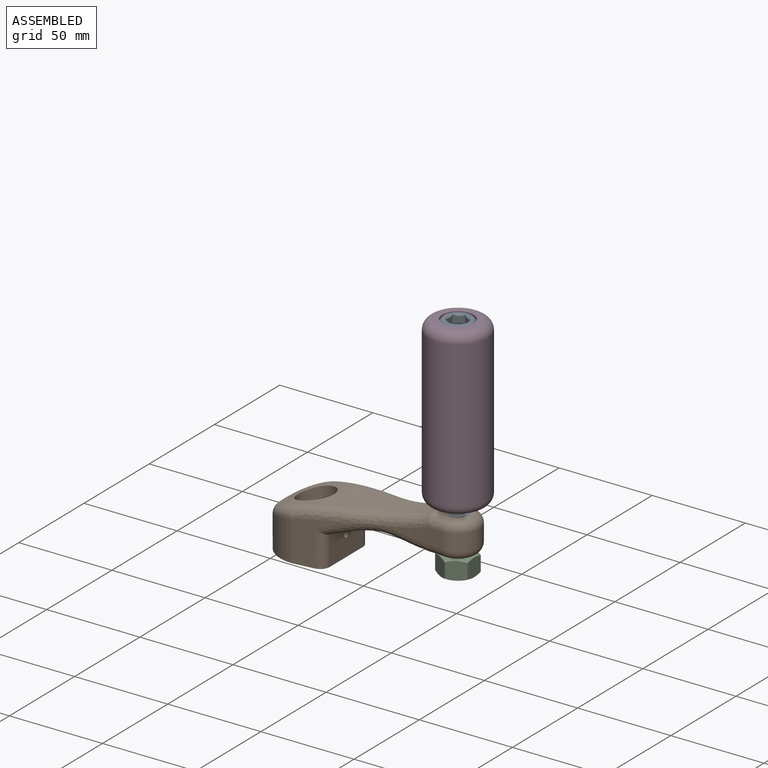
[diagram: assembled view]
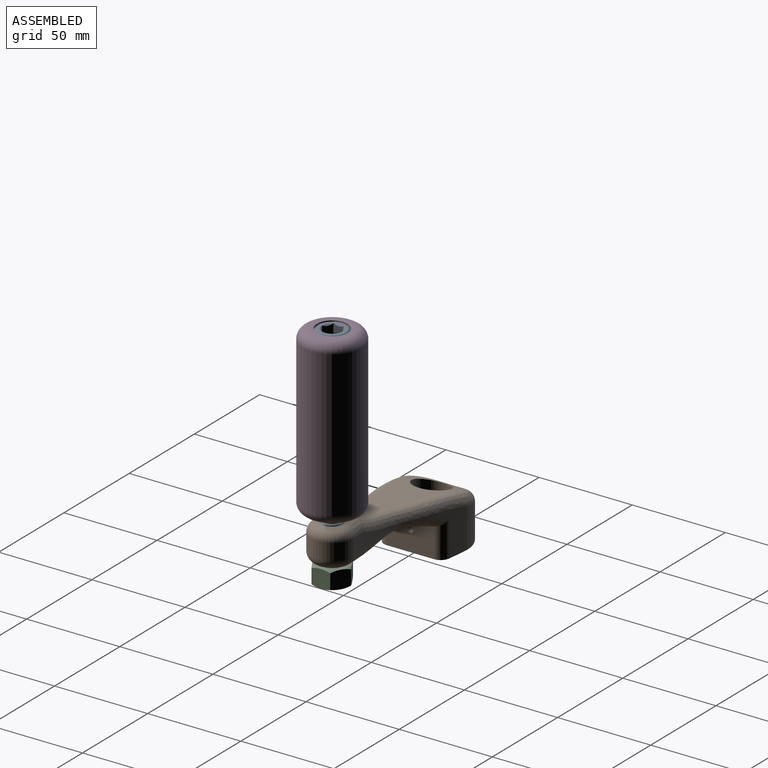
[diagram: assembled view, second angle]
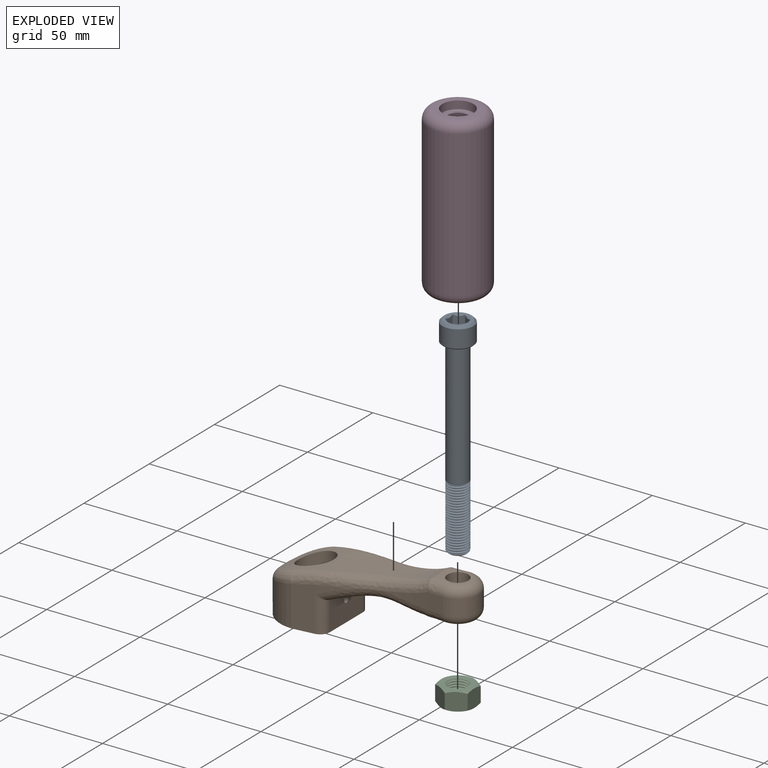
[diagram: exploded view]
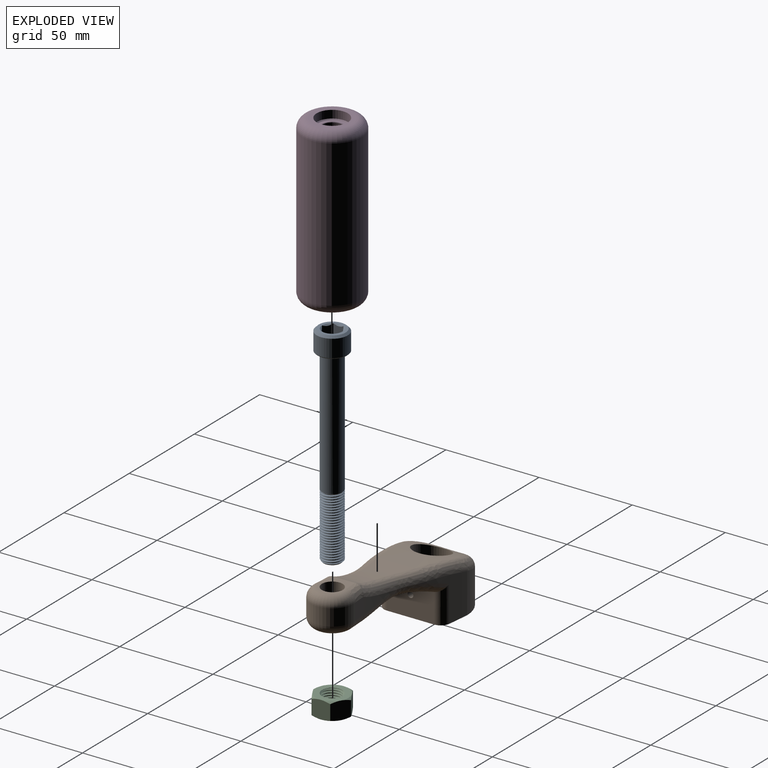
[diagram: exploded view, second angle]
ASSEMBLY  parts=4 mates=3
PART A: 52 faces, bbox 18.8x18.8x115.9 mm
  f0: cone r=8.33mm half-angle=45deg, axis (0,0,-1), area 39.8mm2, adj f1,f36
  f1: plane 15.56x15.56mm, normal (0,0,1), area 93.1mm2, adj f0,f2
  f2: cylinder r=5.56mm len=67.63mm, axis (0,0,1), area 2331.5mm2, adj f1,f3,f33,f34,f35
  f3: cylinder r=5.56mm len=11.11mm, axis (0,0,1), area 5.5mm2, adj f2,f4,f33,f35
  f4: cylinder r=5.56mm len=11.11mm, axis (0,0,1), area 5.5mm2, adj f3,f5,f33,f35
  f5: cylinder r=5.56mm len=11.11mm, axis (0,0,1), area 5.5mm2, adj f4,f6,f33,f35
  f6: cylinder r=5.56mm len=11.11mm, axis (0,0,1), area 5.5mm2, adj f5,f7,f33,f35
  f7: cylinder r=5.56mm len=11.11mm, axis (0,0,1), area 5.5mm2, adj f6,f8,f33,f35
  f8: cylinder r=5.56mm len=11.11mm, axis (0,0,1), area 5.5mm2, adj f7,f9,f33,f35
  f9: cylinder r=5.56mm len=11.11mm, axis (0,0,1), area 5.5mm2, adj f8,f10,f33,f35
  f10: cylinder r=5.56mm len=11.11mm, axis (0,0,1), area 5.5mm2, adj f9,f11,f33,f35
  f11: cylinder r=5.56mm len=11.11mm, axis (0,0,1), area 5.5mm2, adj f10,f12,f33,f35
  f12: cylinder r=5.56mm len=11.11mm, axis (0,0,1), area 5.5mm2, adj f11,f13,f33,f35
  f13: cylinder r=5.56mm len=11.11mm, axis (0,0,1), area 5.5mm2, adj f12,f14,f33,f35
  f14: cylinder r=5.56mm len=11.11mm, axis (0,0,1), area 5.5mm2, adj f13,f15,f33,f35
  f15: cylinder r=5.56mm len=11.11mm, axis (0,0,1), area 5.5mm2, adj f14,f16,f33,f35
  f16: cylinder r=5.56mm len=11.11mm, axis (0,0,1), area 5.5mm2, adj f15,f17,f33,f35
  f17: cylinder r=5.56mm len=11.11mm, axis (0,0,1), area 5.5mm2, adj f16,f18,f33,f35
  f18: cylinder r=5.56mm len=11.11mm, axis (0,0,1), area 5.5mm2, adj f17,f19,f33,f35
  f19: cylinder r=5.56mm len=11.11mm, axis (0,0,1), area 5.5mm2, adj f18,f20,f33,f35
  f20: cylinder r=5.56mm len=11.11mm, axis (0,0,1), area 5.5mm2, adj f19,f21,f33,f35
  f21: cylinder r=5.56mm len=11.11mm, axis (0,0,1), area 5.5mm2, adj f20,f22,f33,f35
  f22: cylinder r=5.56mm len=11.11mm, axis (0,0,1), area 5.5mm2, adj f21,f23,f33,f35
  f23: cylinder r=5.56mm len=11.11mm, axis (0,0,1), area 5.5mm2, adj f22,f24,f33,f35
  f24: cylinder r=5.56mm len=11.11mm, axis (0,0,1), area 5.5mm2, adj f23,f25,f33,f35
  f25: cylinder r=5.56mm len=11.11mm, axis (0,0,1), area 5.5mm2, adj f24,f26,f33,f35
  f26: cylinder r=5.56mm len=11.11mm, axis (0,0,1), area 5.5mm2, adj f25,f27,f33,f35
  f27: cylinder r=5.56mm len=11.11mm, axis (0,0,1), area 5.5mm2, adj f26,f28,f33,f35
  f28: cylinder r=5.56mm len=11.11mm, axis (0,0,1), area 5.5mm2, adj f27,f29,f33,f35
  f29: cylinder r=5.56mm len=3.96mm, axis (0,0,1), area 0.4mm2, adj f28,f30,f33
  f30: cone r=4.6mm half-angle=45deg, axis (0,0,-1), area 28.4mm2, adj f29,f31,f32,f33,f35
  f31: plane 9.21x9.21mm, normal (0,0,1), area 66.6mm2, adj f30
  f32: cylinder r=4.73mm len=33.97mm, axis (0,0,-1), area 123.4mm2, adj f30,f33,f34,f35
  f33: bspline ~36.51x11.08mm, area 804.2mm2, adj f2,f3,f4,f5,f6,f7,f8,f9
  f34: cone r=5.56mm half-angle=45deg, axis (0,0,-1), area 19.2mm2, adj f2,f32,f33,f35
  f35: bspline ~34.8x11.1mm, area 823.9mm2, adj f2,f3,f4,f5,f6,f7,f8,f9
  f36: cylinder r=8.33mm len=16.67mm, axis (0,0,1), area 494.6mm2, adj f0,f37
  f37: cone r=7.22mm half-angle=45deg, axis (0,0,1), area 76.8mm2, adj f36,f38
  f38: plane 14.45x14.45mm, normal (0,0,-1), area 68.9mm2, adj f37,f39,f47,f48,f49,f50,f51
  f39: cone r=5.5mm half-angle=45deg, axis (0,0,-1), area 0mm2, adj f38,f40
  f40: plane 9.23x6.85mm, normal (-0.5,-0.87,0), area 36.6mm2, adj f39,f41,f45,f46
  f41: plane 11x9.53mm, normal (0,0,-1), area 78.6mm2, adj f40,f42,f43,f44,f45,f46
  f42: plane 7.68x6.03mm, normal (1,0,0), area 36.6mm2, adj f41,f43,f46,f50
  f43: plane 9.23x6.85mm, normal (0.5,0.87,0), area 36.6mm2, adj f41,f42,f44,f49
  f44: plane 9.23x6.85mm, normal (-0.5,0.87,0), area 36.6mm2, adj f41,f43,f45,f48
  f45: plane 9.23x7.58mm, normal (-1,0,0), area 36.6mm2, adj f40,f41,f44,f47
  f46: plane 9.23x6.85mm, normal (0.5,-0.87,0), area 36.6mm2, adj f40,f41,f42,f51
  f47: cone r=5.5mm half-angle=45deg, axis (0,0,-1), area 0mm2, adj f38,f45
  f48: cone r=5.5mm half-angle=45deg, axis (0,0,-1), area 0mm2, adj f38,f44
  f49: cone r=5.5mm half-angle=45deg, axis (0,0,-1), area 0mm2, adj f38,f43
  f50: cone r=5.5mm half-angle=45deg, axis (0,0,-1), area 2.9mm2, adj f38,f42
  f51: cone r=5.5mm half-angle=45deg, axis (0,0,-1), area 0mm2, adj f38,f46
PART B: 38 faces, bbox 135.4x38.5x37.9 mm
  f0: extruded ~31.52x8.89mm, area 187.9mm2, adj f5,f27,f31,f34,f36
  f1: extruded ~28.4x25.89mm, area 227.1mm2, adj f7,f11,f20,f23,f26
  f2: cylinder r=9.53mm len=28.63mm, axis (0,0,-1), area 1571.2mm2, adj f11,f12,f18
  f3: extruded ~22.23x3.71mm, area 81.1mm2, adj f4,f6,f11,f32
  f4: extruded ~28.4x25.89mm, area 227.1mm2, adj f3,f11,f28,f31,f34
  f5: extruded ~8.89x1.5mm, area 13.4mm2, adj f0,f10,f24,f37
  f6: cylinder r=19.05mm len=38.1mm, axis (0,0,-1), area 1077.7mm2, adj f3,f7,f11,f25,f29,f32
  f7: extruded ~22.23x3.71mm, area 81.1mm2, adj f1,f6,f11,f25
  f8: extruded ~31.52x8.89mm, area 187.9mm2, adj f9,f21,f23,f26,f30
  f9: extruded ~8.89x1.5mm, area 13.4mm2, adj f8,f10,f19,f33
  f10: cylinder r=11.43mm len=22.86mm, axis (0,0,-1), area 319.2mm2, adj f5,f9,f22,f35
  f11: plane 38.1x35.34mm, normal (0,0,-1), area 868.7mm2, adj f1,f2,f3,f4,f6,f7,f15,f20
  f12: extruded ~83.8x27.94mm, area 1318.4mm2, adj f2,f13,f25,f26,f29,f30,f32,f34
  f13: plane 15.47x12.7mm, normal (0,0,1), area 75.7mm2, adj f12,f17,f30,f33,f35,f36,f37
  f14: plane 15.47x12.7mm, normal (0,0,-1), area 75.7mm2, adj f16,f17,f19,f21,f22,f24,f27
  f15: plane 25.43x15.9mm, normal (1,0,0), area 395.7mm2, adj f11,f16,f18,f20,f23,f28,f31
  f16: extruded ~50.8x24.56mm, area 810.6mm2, adj f14,f15,f21,f23,f27,f31
  f17: cylinder r=5.59mm len=19.05mm, axis (0,0,-1), area 668.9mm2, adj f13,f14
  f18: cylinder r=1.59mm len=6.76mm, axis (1,0,0), area 67.4mm2, adj f2,f15
  f19: bspline ~5.21x5.08mm, area 11.3mm2, adj f9,f14,f21,f22
  f20: cylinder r=5.08mm len=19.33mm, axis (0,0,-1), area 129.2mm2, adj f1,f11,f15,f23
  f21: bspline ~54.81x8.39mm, area 62.7mm2, adj f8,f14,f16,f19,f23
  f22: torus R=6.35mm, axis (0,0,-1), area 238.7mm2, adj f10,f14,f19,f24
  f23: bspline ~57.7x13.19mm, area 423.7mm2, adj f1,f8,f15,f16,f20,f21,f26
  f24: bspline ~5.21x5.08mm, area 11.3mm2, adj f5,f14,f22,f27
  f25: bspline ~6.8x6.3mm, area 31.3mm2, adj f6,f7,f12,f26,f29
  f26: bspline ~70.02x16.31mm, area 532.4mm2, adj f1,f8,f12,f23,f25,f30
  f27: bspline ~54.81x8.39mm, area 62.7mm2, adj f0,f14,f16,f24,f31
  f28: cylinder r=5.08mm len=19.33mm, axis (0,0,-1), area 129.2mm2, adj f4,f11,f15,f31
  f29: bspline ~38.2x21.27mm, area 358.2mm2, adj f6,f12,f25,f32
  f30: bspline ~54.81x8.39mm, area 59.8mm2, adj f8,f12,f13,f26,f33
  f31: bspline ~59.49x13.89mm, area 423.7mm2, adj f0,f4,f15,f16,f27,f28,f34
  f32: bspline ~6.8x6.3mm, area 31.3mm2, adj f3,f6,f12,f29,f34
  f33: bspline ~5.21x5.08mm, area 11.3mm2, adj f9,f13,f30,f35
  f34: bspline ~70.02x16.31mm, area 532.4mm2, adj f0,f4,f12,f31,f32,f36
  f35: torus R=6.35mm, axis (0,0,-1), area 238.7mm2, adj f10,f13,f33,f37
  f36: bspline ~54.81x8.39mm, area 59.8mm2, adj f0,f12,f13,f34,f37
  f37: bspline ~5.21x5.08mm, area 11.3mm2, adj f5,f13,f35,f36
PART C: 26 faces, bbox 21x21x12.1 mm
  f0: cone r=5.23mm half-angle=45deg, axis (0,0,-1), area 19.2mm2, adj f10,f11,f12,f13
  f1: cone r=5.23mm half-angle=45deg, axis (0,0,1), area 19.2mm2, adj f3,f11,f12,f13
  f2: cylinder r=5.55mm len=11.1mm, axis (0,0,-1), area 41.5mm2, adj f3,f10,f11,f13
  f3: plane 17.46x17.46mm, normal (0,0,1), area 142.7mm2, adj f1,f2,f14,f15,f16,f17,f18,f19
  f4: plane 10.35x9.56mm, normal (-0.5,0.87,0), area 90.6mm2, adj f5,f9,f14,f19,f21,f22
  f5: plane 10.91x10.36mm, normal (-1,0,0), area 90.6mm2, adj f4,f6,f18,f19,f22,f23
  f6: plane 10.35x9.56mm, normal (-0.5,-0.87,0), area 90.6mm2, adj f5,f7,f17,f18,f23,f24
  f7: plane 10.35x9.56mm, normal (0.5,-0.87,0), area 90.6mm2, adj f6,f8,f16,f17,f24,f25
  f8: plane 10.91x10.36mm, normal (1,0,0), area 90.6mm2, adj f7,f9,f15,f16,f20,f25
  f9: plane 10.35x9.56mm, normal (0.5,0.87,0), area 90.6mm2, adj f4,f8,f14,f15,f20,f21
  f10: plane 17.46x17.46mm, normal (0,0,-1), area 142.7mm2, adj f0,f2,f20,f21,f22,f23,f24,f25
  f11: bspline ~11.1x10.82mm, area 191.3mm2, adj f0,f1,f2,f12
  f12: cylinder r=4.73mm len=9.45mm, axis (0,0,1), area 29.1mm2, adj f0,f1,f11,f13
  f13: bspline ~11.1x11.03mm, area 211mm2, adj f0,f1,f2,f12
  f14: cone r=8.73mm half-angle=60deg, axis (0,0,-1), area 7.5mm2, adj f3,f4,f9
  f15: cone r=8.73mm half-angle=60deg, axis (0,0,-1), area 7.5mm2, adj f3,f8,f9
  f16: cone r=8.73mm half-angle=60deg, axis (0,0,-1), area 7.5mm2, adj f3,f7,f8
  f17: cone r=8.73mm half-angle=60deg, axis (0,0,-1), area 7.5mm2, adj f3,f6,f7
  f18: cone r=8.73mm half-angle=60deg, axis (0,0,-1), area 7.5mm2, adj f3,f5,f6
  f19: cone r=8.73mm half-angle=60deg, axis (0,0,-1), area 7.5mm2, adj f3,f4,f5
  f20: cone r=8.73mm half-angle=60deg, axis (0,0,1), area 7.5mm2, adj f8,f9,f10
  f21: cone r=8.73mm half-angle=60deg, axis (0,0,1), area 7.5mm2, adj f4,f9,f10
  f22: cone r=8.73mm half-angle=60deg, axis (0,0,1), area 7.5mm2, adj f4,f5,f10
  f23: cone r=8.73mm half-angle=60deg, axis (0,0,1), area 7.5mm2, adj f5,f6,f10
  f24: cone r=8.73mm half-angle=60deg, axis (0,0,1), area 7.5mm2, adj f6,f7,f10
  f25: cone r=8.73mm half-angle=60deg, axis (0,0,1), area 7.5mm2, adj f7,f8,f10
PART D: 9 faces, bbox 34.4x34.4x88.9 mm
  f0: cylinder r=5.59mm len=84.14mm, axis (0,0,-1), area 2954.1mm2, adj f3,f8
  f1: cylinder r=15.88mm len=78.74mm, axis (0,0,-1), area 7854mm2, adj f4,f5
  f2: plane 21.59x21.59mm, normal (0,0,1), area 147.9mm2, adj f5,f7
  f3: plane 21.59x21.59mm, normal (0,0,-1), area 268mm2, adj f0,f4
  f4: torus R=10.79mm, axis (0,0,1), area 703.4mm2, adj f1,f3
  f5: torus R=10.79mm, axis (0,0,1), area 703.4mm2, adj f1,f2
  f6: cone r=8.33mm half-angle=45deg, axis (0,0,1), area 39.8mm2, adj f7,f8
  f7: cylinder r=8.33mm len=16.67mm, axis (0,0,-1), area 220.3mm2, adj f2,f6
  f8: plane 15.56x15.56mm, normal (0,0,1), area 92mm2, adj f0,f6
PLACE A rot(axis=(1,0,0),180deg) t=(57.32,-30.8,173.24)mm
PLACE B t=(-18.88,-30.8,154.53)mm
PLACE C rot(axis=(0,0,1),0deg) t=(57.32,-30.8,167.84)mm
PLACE D t=(114.88,-78.52,197.05)mm
MATE revolute C.f2 <-> A.f0  axis (0,0,-1) through (57.32,-30.8,163.08)mm
MATE revolute D.f0 <-> A.f0  axis (0,0,1) through (57.32,-30.8,285.95)mm
MATE cylindrical A.f0 <-> B.f17  axis (0,0,-1) through (57.32,-30.8,173.24)mm
